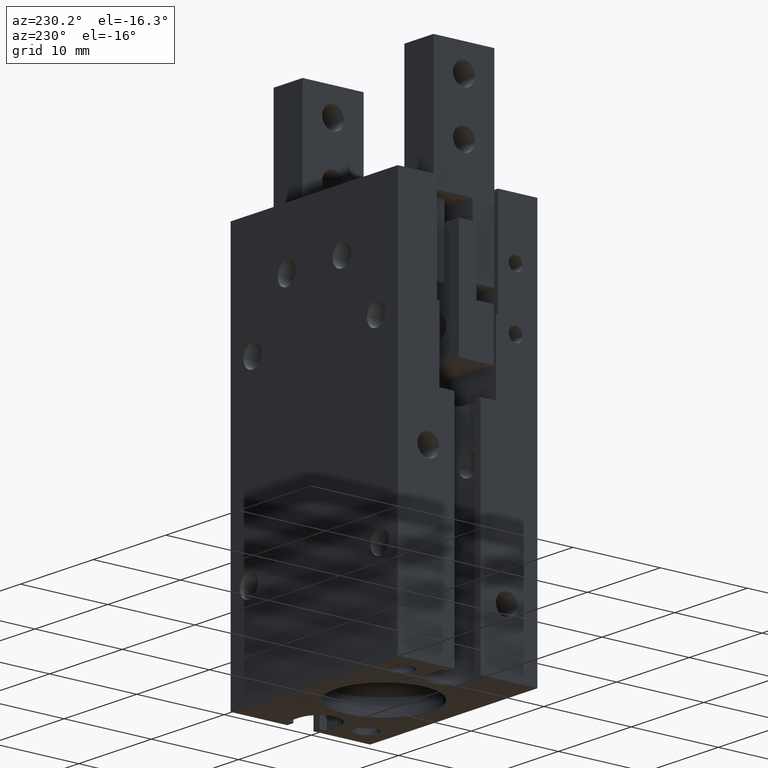
[diagram: clean part render]
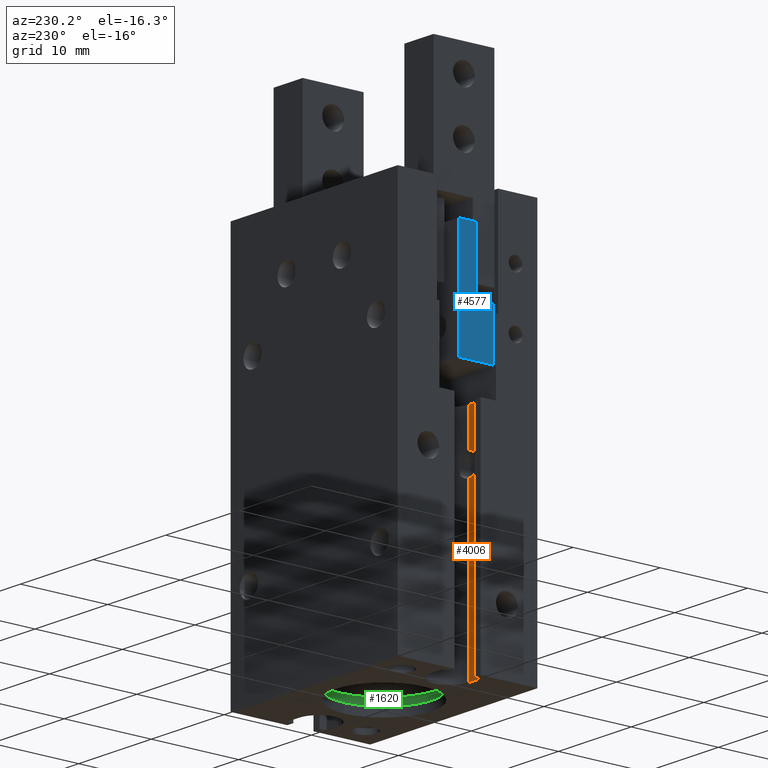
[diagram: same view with three faces highlighted in distinct colors, each labeled with its STEP entity id]
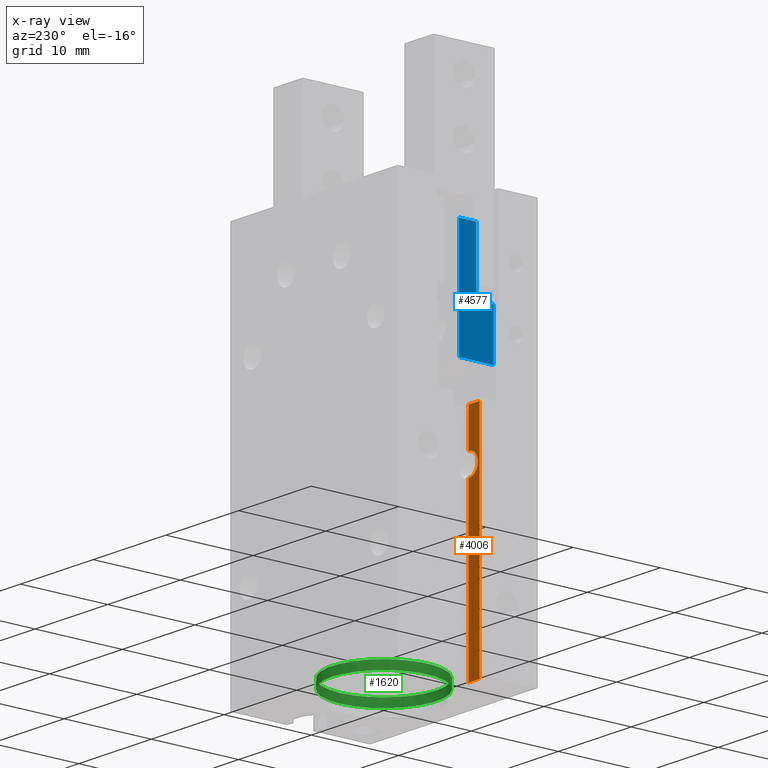
[diagram: x-ray of the same camera — body ghosted, the three highlighted faces saturated]
A machine part, auxiliary view with three faces highlighted in distinct colors.
The next image is the same camera in x-ray (body ghosted, the three faces saturated) — at least one of them is partly hidden behind the body in this view.
Their STEP definitions:

[orange] entity #4006 — the highlighted planar face has unit normal (0, 1, 0).
#1863=CARTESIAN_POINT('',(-9.,-2.19999999999999,18.7500000000002));
#1864=VERTEX_POINT('Vertex72',#1863);
#1878=CARTESIAN_POINT('',(-9.,-2.19999999999999,21.2500000000001));
#1879=VERTEX_POINT('Vertex74',#1878);
#1880=CARTESIAN_POINT('',(-9.00000000000018,-2.19999999999999,20.0000000000001)
);
#1881=DIRECTION('',(-4.97379915032036E-015,1.,2.13162820728001E-015));
#1882=DIRECTION('',(1.49213974509623E-013,0.,-1.));
#1883=AXIS2_PLACEMENT_3D('',#1880,#1881,#1882);
#1884=CIRCLE('nurbsCrv93',#1883,1.24999999999998);
#1885=EDGE_CURVE('Edge93',#1864,#1879,#1884,.T.);
#1953=CARTESIAN_POINT('',(-10.5,-2.19999999999999,-6.42918335756748E-016));
#1954=VERTEX_POINT('Vertex81',#1953);
#1962=CARTESIAN_POINT('',(-9.,-2.19999999999999,-5.5107285922007E-016));
#1963=VERTEX_POINT('Vertex82',#1962);
#1964=CARTESIAN_POINT('',(-9.75,-2.19999999999999,-5.96995597488409E-016));
#1965=DIRECTION('',(1.,0.,6.12303176911189E-017));
#1966=VECTOR('',#1965,1.);
#1967=LINE('nurbsCrv101',#1964,#1966);
#1968=EDGE_CURVE('Edge101',#1954,#1963,#1967,.T.);
#3660=CARTESIAN_POINT('',(-9.,-2.19999999999999,9.37500000000008));
#3661=DIRECTION('',(9.47390314346792E-017,0.,1.));
#3662=VECTOR('',#3661,1.);
#3663=LINE('nurbsCrv205',#3660,#3662);
#3664=EDGE_CURVE('Edge205',#1963,#1864,#3663,.T.);
#3670=CARTESIAN_POINT('',(-9.,-2.19999999999999,25.5));
#3671=VERTEX_POINT('Vertex166',#3670);
#3672=CARTESIAN_POINT('',(-9.,-2.19999999999999,23.3750000000001));
#3673=DIRECTION('',(-4.17966315153012E-016,0.,1.));
#3674=VECTOR('',#3673,1.);
#3675=LINE('nurbsCrv206',#3672,#3674);
#3676=EDGE_CURVE('Edge206',#1879,#3671,#3675,.T.);
#3981=ORIENTED_EDGE('Edgeuse417',*,*,#1968,.F.);
#3982=CARTESIAN_POINT('',(-10.5,-2.19999999999999,25.5));
#3983=VERTEX_POINT('Vertex177',#3982);
#3984=CARTESIAN_POINT('',(-10.5,-2.19999999999999,12.75));
#3985=DIRECTION('',(0.,0.,1.));
#3986=VECTOR('',#3985,1.);
#3987=LINE('nurbsCrv231',#3984,#3986);
#3988=EDGE_CURVE('Edge231',#1954,#3983,#3987,.T.);
#3989=ORIENTED_EDGE('Edgeuse418',*,*,#3988,.T.);
#3990=CARTESIAN_POINT('',(-9.75,-2.19999999999999,25.5));
#3991=DIRECTION('',(-1.,0.,0.));
#3992=VECTOR('',#3991,1.);
#3993=LINE('nurbsCrv232',#3990,#3992);
#3994=EDGE_CURVE('Edge232',#3671,#3983,#3993,.T.);
#3995=ORIENTED_EDGE('Edgeuse419',*,*,#3994,.F.);
#3996=ORIENTED_EDGE('Edgeuse420',*,*,#3676,.F.);
#3997=ORIENTED_EDGE('Edgeuse421',*,*,#1885,.F.);
#3998=ORIENTED_EDGE('Edgeuse422',*,*,#3664,.F.);
#3999=EDGE_LOOP('',(#3981,#3989,#3995,#3996,#3997,#3998));
#4000=FACE_OUTER_BOUND('',#3999,.T.);
#4001=CARTESIAN_POINT('',(-9.75,-2.19999999999999,12.75));
#4002=DIRECTION('',(0.,1.,0.));
#4003=DIRECTION('',(1.,0.,0.));
#4004=AXIS2_PLACEMENT_3D('',#4001,#4002,#4003);
#4005=PLANE('nurbsSrf95',#4004);
#4006=ADVANCED_FACE('Face95',(#4000),#4005,.T.);

[blue] entity #4577 — the highlighted planar face has unit normal (-1, 0, -0).
#4191=CARTESIAN_POINT('',(-11.5,-2.99999999999997,34.3));
#4192=VERTEX_POINT('Vertex192',#4191);
#4199=CARTESIAN_POINT('',(-11.5,-2.99999999999997,28.7));
#4200=VERTEX_POINT('Vertex193',#4199);
#4201=CARTESIAN_POINT('',(-11.5,-2.99999999999997,31.5));
#4202=DIRECTION('',(0.,0.,-1.));
#4203=VECTOR('',#4202,1.);
#4204=LINE('nurbsCrv251',#4201,#4203);
#4205=EDGE_CURVE('Edge251',#4192,#4200,#4204,.T.);
#4281=CARTESIAN_POINT('',(-11.5,-0.999999999999973,34.3));
#4282=VERTEX_POINT('Vertex197',#4281);
#4283=CARTESIAN_POINT('',(-11.5,-0.999999999999969,41.5));
#4284=VERTEX_POINT('Vertex196',#4283);
#4285=CARTESIAN_POINT('',(-11.5,-0.999999999999971,37.9));
#4286=DIRECTION('',(0.,5.24271983850769E-016,1.));
#4287=VECTOR('',#4286,1.);
#4288=LINE('nurbsCrv257',#4285,#4287);
#4289=EDGE_CURVE('Edge257',#4282,#4284,#4288,.T.);
#4361=CARTESIAN_POINT('',(-11.5,-1.99999999999997,34.3));
#4362=DIRECTION('',(3.55271367880051E-015,1.,0.));
#4363=VECTOR('',#4362,1.);
#4364=LINE('nurbsCrv265',#4361,#4363);
#4365=EDGE_CURVE('Edge265',#4192,#4282,#4364,.T.);
#4383=CARTESIAN_POINT('',(-11.5,1.00000000000004,41.5));
#4384=VERTEX_POINT('Vertex204',#4383);
#4385=CARTESIAN_POINT('',(-11.5,3.33066907387547E-014,41.5));
#4386=DIRECTION('',(2.66453525910037E-015,1.,0.));
#4387=VECTOR('',#4386,1.);
#4388=LINE('nurbsCrv267',#4385,#4387);
#4389=EDGE_CURVE('Edge267',#4284,#4384,#4388,.T.);
#4552=ORIENTED_EDGE('Edgeuse510',*,*,#4389,.T.);
#4553=CARTESIAN_POINT('',(-11.5,1.00000000000004,28.7));
#4554=VERTEX_POINT('Vertex210',#4553);
#4555=CARTESIAN_POINT('',(-11.5,1.00000000000004,35.1));
#4556=DIRECTION('',(-1.38777878078145E-016,-6.93889390390723E-017,1.));
#4557=VECTOR('',#4556,1.);
#4558=LINE('nurbsCrv280',#4555,#4557);
#4559=EDGE_CURVE('Edge280',#4554,#4384,#4558,.T.);
#4560=ORIENTED_EDGE('Edgeuse511',*,*,#4559,.F.);
#4561=CARTESIAN_POINT('',(-11.5,-0.999999999999966,28.7));
#4562=DIRECTION('',(3.5527136788005E-015,1.,0.));
#4563=VECTOR('',#4562,1.);
#4564=LINE('nurbsCrv281',#4561,#4563);
#4565=EDGE_CURVE('Edge281',#4200,#4554,#4564,.T.);
#4566=ORIENTED_EDGE('Edgeuse512',*,*,#4565,.F.);
#4567=ORIENTED_EDGE('Edgeuse513',*,*,#4205,.F.);
#4568=ORIENTED_EDGE('Edgeuse514',*,*,#4365,.T.);
#4569=ORIENTED_EDGE('Edgeuse515',*,*,#4289,.T.);
#4570=EDGE_LOOP('',(#4552,#4560,#4566,#4567,#4568,#4569));
#4571=FACE_OUTER_BOUND('',#4570,.T.);
#4572=CARTESIAN_POINT('',(-11.5,-0.999999999999966,35.1));
#4573=DIRECTION('',(-1.,3.22973970800042E-015,-1.09507421631273E-029));
#4574=DIRECTION('',(-3.22973970800042E-015,-1.,3.22973970800042E-015));
#4575=AXIS2_PLACEMENT_3D('',#4572,#4573,#4574);
#4576=PLANE('nurbsSrf113',#4575);
#4577=ADVANCED_FACE('Face113',(#4571),#4576,.T.);

[green] entity #1620 — the highlighted cylindrical surface (bore or boss wall) has radius 6 mm, axis along (0, -0, -1).
#1565=CARTESIAN_POINT('',(-2.11843549863223E-014,-6.,2.));
#1566=VERTEX_POINT('Vertex62',#1565);
#1567=CARTESIAN_POINT('',(6.,-2.72833168275439E-014,2.));
#1568=VERTEX_POINT('Vertex242',#1567);
#1569=CARTESIAN_POINT('',(3.70074341541719E-017,-1.96139401017111E-015,2.));
#1570=DIRECTION('',(2.96059473233375E-016,7.40148683083426E-017,-1.));
#1571=DIRECTION('',(-3.53689373674608E-015,-1.,7.40148683083438E-017));
#1572=AXIS2_PLACEMENT_3D('',#1569,#1570,#1571);
#1573=CIRCLE('nurbsCrv582',#1572,6.);
#1574=EDGE_CURVE('Edge351',#1566,#1568,#1573,.T.);
#1576=CARTESIAN_POINT('',(2.1094237467878E-015,-2.99760216648792E-015,2.));
#1577=DIRECTION('',(3.06779240919283E-031,7.40148683083438E-017,-1.));
#1578=DIRECTION('',(1.,-4.04761911017601E-015,0.));
#1579=AXIS2_PLACEMENT_3D('',#1576,#1577,#1578);
#1580=CIRCLE('nurbsCrv583',#1579,6.);
#1581=EDGE_CURVE('Edge352',#1568,#1566,#1580,.T.);
#1591=CARTESIAN_POINT('',(2.00735808690023E-014,6.,1.));
#1592=VERTEX_POINT('Vertex63',#1591);
#1593=CARTESIAN_POINT('',(6.,-1.82393547386456E-014,1.));
#1594=VERTEX_POINT('Vertex243',#1593);
#1595=CARTESIAN_POINT('',(3.14563190310461E-016,2.07241631263363E-015,1.));
#1596=DIRECTION('',(-1.48029736616688E-016,-1.85037170770855E-017,1.));
#1597=DIRECTION('',(3.29316961311531E-015,1.,3.70074341541719E-017));
#1598=AXIS2_PLACEMENT_3D('',#1595,#1596,#1597);
#1599=CIRCLE('nurbsCrv586',#1598,6.);
#1600=EDGE_CURVE('Edge353',#1592,#1594,#1599,.T.);
#1601=ORIENTED_EDGE('Edgeuse707',*,*,#1600,.F.);
#1602=CARTESIAN_POINT('',(2.22044604925031E-015,8.32667268468867E-016,1.));
#1603=DIRECTION('',(-1.48029736616688E-016,-3.70074341541714E-017,1.));
#1604=DIRECTION('',(1.,-3.17867033451909E-015,1.66533453693774E-016));
#1605=AXIS2_PLACEMENT_3D('',#1602,#1603,#1604);
#1606=CIRCLE('nurbsCrv587',#1605,6.);
#1607=EDGE_CURVE('Edge354',#1594,#1592,#1606,.T.);
#1608=ORIENTED_EDGE('Edgeuse709',*,*,#1607,.F.);
#1609=EDGE_LOOP('',(#1601,#1608));
#1610=FACE_BOUND('',#1609,.T.);
#1611=ORIENTED_EDGE('Edgeuse702',*,*,#1574,.F.);
#1612=ORIENTED_EDGE('Edgeuse704',*,*,#1581,.F.);
#1613=EDGE_LOOP('',(#1611,#1612));
#1614=FACE_BOUND('',#1613,.T.);
#1615=CARTESIAN_POINT('',(1.38777878078145E-015,3.59434704222394E-015,2.05));
#1616=DIRECTION('',(7.40148683083438E-017,-2.30084430689462E-031,-1.));
#1617=DIRECTION('',(1.,-3.17435037284445E-015,7.40148683083438E-017));
#1618=AXIS2_PLACEMENT_3D('',#1615,#1616,#1617);
#1619=CYLINDRICAL_SURFACE('nurbsSrf37',#1618,6.);
#1620=ADVANCED_FACE('Face37',(#1610,#1614),#1619,.F.);